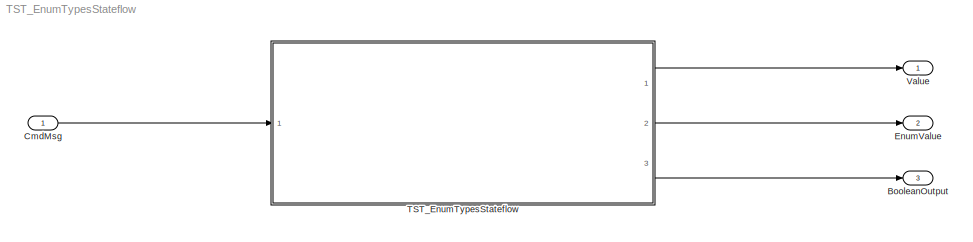
MODEL TST_EnumTypesStateflow
KIND model
BLOCK [Outport] BooleanOutput
  IconDisplay = Port number
  OutDataTypeStr = boolean
  Port = 3
  PortDimensions = 1
  SID = 37
BLOCK [Inport] CmdMsg
  BusOutputAsStruct = on
  IconDisplay = Port number
  OutDataTypeStr = Bus: DIL_VmmGsFcsCommandsMessage_Data
  SID = 23
BLOCK [Outport] EnumValue
  IconDisplay = Port number
  OutDataTypeStr = Enum: DIL_VmmGsFcsCommandsMessage_LatApModeCmd
  Port = 2
  PortDimensions = 1
  SID = 32
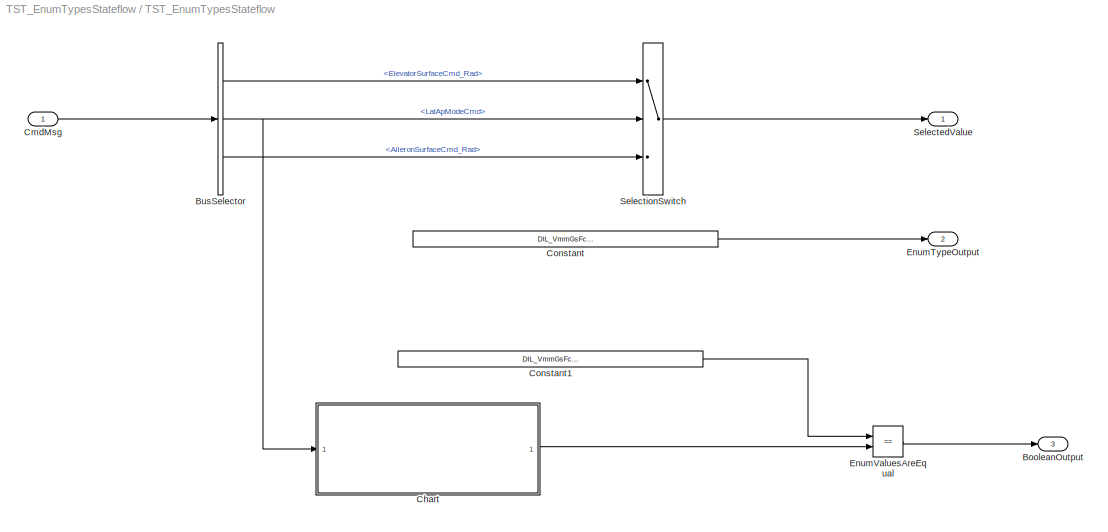
BLOCK [SubSystem] TST_EnumTypesStateflow
  Ports = [1, 3]
  RequestExecContextInheritance = off
  SID = 2
  TreatAsAtomicUnit = on
BLOCK [Outport] TST_EnumTypesStateflow/BooleanOutput
  IconDisplay = Port number
  OutDataTypeStr = boolean
  Port = 3
  PortDimensions = 1
  SID = 36
BLOCK [BusSelector] TST_EnumTypesStateflow/BusSelector
  OutputAsBus = off
  OutputSignals = ElevatorSurfaceCmd_Rad,LatApModeCmd,AileronSurfaceCmd_Rad
  Ports = [1, 3]
  SID = 28
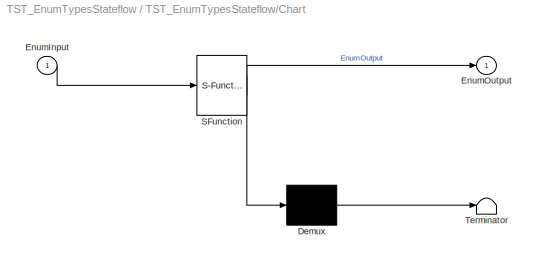
BLOCK [SubSystem] TST_EnumTypesStateflow/Chart
  ErrorFcn = Stateflow.Translate.translate
  PermitHierarchicalResolution = ExplicitOnly
  Ports = [1, 1]
  RequestExecContextInheritance = off
  SFBlockType = Chart
  SID = 34
  TreatAsAtomicUnit = on
BLOCK [Demux] TST_EnumTypesStateflow/Chart/ Demux 
  Outputs = 1
  Ports = [1, 1]
  SID = 34::12
BLOCK [S-Function] TST_EnumTypesStateflow/Chart/ SFunction 
  EnableBusSupport = off
  FunctionName = sf_sfun
  PortCounts = [1 2]
  Ports = [1, 2]
  SFcnIsStateOwnerBlock = off
  SFunctionDeploymentMode = off
  SID = 34::11
  Tag = Stateflow S-Function 1
BLOCK [Terminator] TST_EnumTypesStateflow/Chart/ Terminator 
  SID = 34::13
BLOCK [Inport] TST_EnumTypesStateflow/Chart/EnumInput
  IconDisplay = Port number
  SID = 34::9
BLOCK [Outport] TST_EnumTypesStateflow/Chart/EnumOutput
  IconDisplay = Port number
  SID = 34::10
BLOCK [Inport] TST_EnumTypesStateflow/CmdMsg
  IconDisplay = Port number
  OutDataTypeStr = Bus: DIL_VmmGsFcsCommandsMessage_Data
  SID = 8
BLOCK [Constant] TST_EnumTypesStateflow/Constant
  OutDataTypeStr = Enum: DIL_VmmGsFcsCommandsMessage_LatApModeCmd
  SID = 30
  Value = DIL_VmmGsFcsCommandsMessage_LatApModeCmd.Ptp
BLOCK [Constant] TST_EnumTypesStateflow/Constant1
  SID = 33
  Value = DIL_VmmGsFcsCommandsMessage_LongApModeCmd.Off
BLOCK [Outport] TST_EnumTypesStateflow/EnumTypeOutput
  IconDisplay = Port number
  OutDataTypeStr = Enum: DIL_VmmGsFcsCommandsMessage_LatApModeCmd
  Port = 2
  PortDimensions = 1
  SID = 29
BLOCK [RelationalOperator] TST_EnumTypesStateflow/EnumValuesAreEqual
  InputSameDT = off
  Operator = ==
  OutDataTypeStr = boolean
  Ports = [2, 1]
  SID = 38
BLOCK [Outport] TST_EnumTypesStateflow/SelectedValue
  IconDisplay = Port number
  OutDataTypeStr = double
  PortDimensions = 1
  SID = 20
BLOCK [Switch] TST_EnumTypesStateflow/SelectionSwitch
  Criteria = u2 > Threshold
  InputSameDT = off
  SID = 19
  SaturateOnIntegerOverflow = off
  Threshold = DIL_VmmGsFcsCommandsMessage_LatApModeCmd.Off
BLOCK [Outport] Value
  IconDisplay = Port number
  OutDataTypeStr = double
  PortDimensions = 1
  SID = 25
LINE CmdMsg:1 -> TST_EnumTypesStateflow:1
LINE TST_EnumTypesStateflow/BusSelector:1 -> TST_EnumTypesStateflow/SelectionSwitch:1
NET TST_EnumTypesStateflow/BusSelector:2 -> TST_EnumTypesStateflow/Chart:1, TST_EnumTypesStateflow/SelectionSwitch:2
LINE TST_EnumTypesStateflow/BusSelector:3 -> TST_EnumTypesStateflow/SelectionSwitch:3
LINE TST_EnumTypesStateflow/Chart/ Demux :1 -> TST_EnumTypesStateflow/Chart/ Terminator :1
LINE TST_EnumTypesStateflow/Chart/ SFunction :1 -> TST_EnumTypesStateflow/Chart/ Demux :1
LINE TST_EnumTypesStateflow/Chart/ SFunction :2 -> TST_EnumTypesStateflow/Chart/EnumOutput:1
LINE TST_EnumTypesStateflow/Chart/EnumInput:1 -> TST_EnumTypesStateflow/Chart/ SFunction :1
LINE TST_EnumTypesStateflow/Chart:1 -> TST_EnumTypesStateflow/EnumValuesAreEqual:2
LINE TST_EnumTypesStateflow/CmdMsg:1 -> TST_EnumTypesStateflow/BusSelector:1
LINE TST_EnumTypesStateflow/Constant1:1 -> TST_EnumTypesStateflow/EnumValuesAreEqual:1
LINE TST_EnumTypesStateflow/Constant:1 -> TST_EnumTypesStateflow/EnumTypeOutput:1
LINE TST_EnumTypesStateflow/EnumValuesAreEqual:1 -> TST_EnumTypesStateflow/BooleanOutput:1
LINE TST_EnumTypesStateflow/SelectionSwitch:1 -> TST_EnumTypesStateflow/SelectedValue:1
LINE TST_EnumTypesStateflow:1 -> Value:1
LINE TST_EnumTypesStateflow:2 -> EnumValue:1
LINE TST_EnumTypesStateflow:3 -> BooleanOutput:1
note: NET lines group one-source signal fan-out (src -> all destinations, sorted); 1:1 wires keep LINE
CHART TST_EnumTypesStateflow/Chart states=2 transitions=2
  STATE_LABEL 'Ping'
  STATE_LABEL 'Pong\\nentry:\\nEnumOutput = ...\\n   DIL_VmmGsFcsCommandsMessage_LongApModeCmd.Altitude;'
